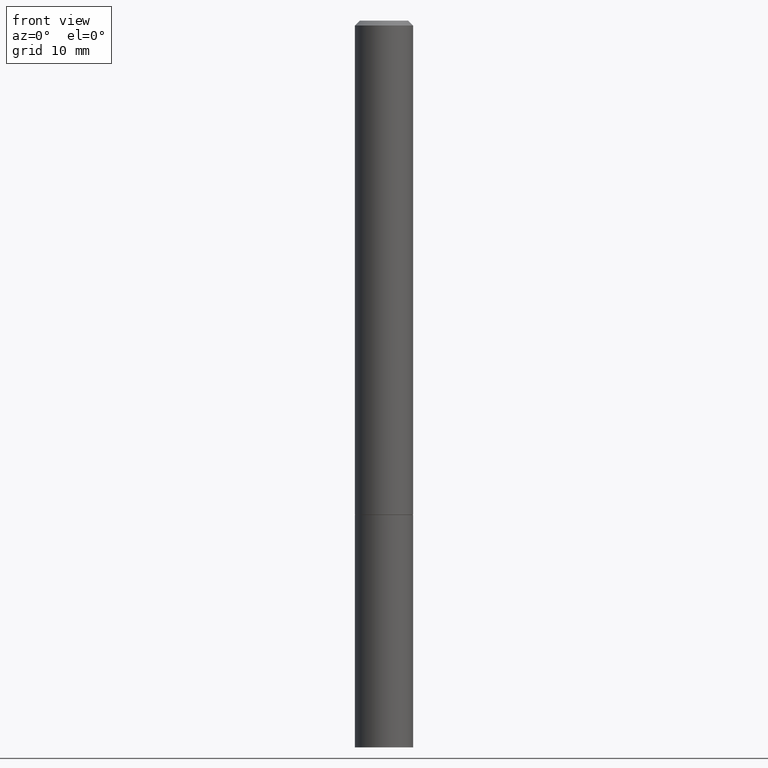
[diagram: clean part render]
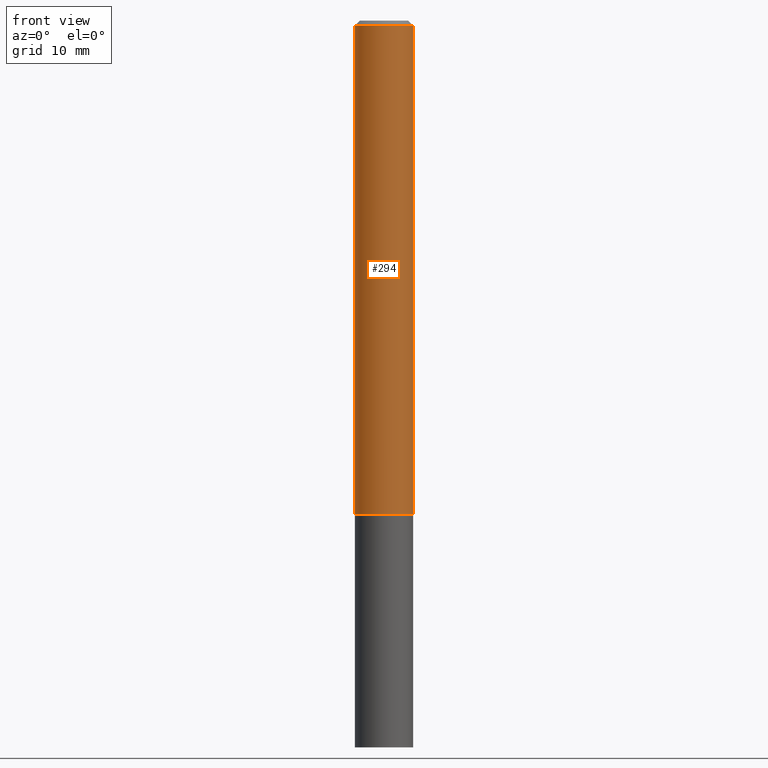
[diagram: same view with one face highlighted and labeled with its STEP entity id]
A machine part, front view. The second image highlights one B-rep face of the part: STEP entity #294.
In plain terms, the highlighted cylindrical surface (edge-blend (fillet) strip) has radius 2.9997 mm, axis along (-0, 0, 1).
Its self-contained STEP definition (entity closure, byte-faithful):
#3 = CARTESIAN_POINT ( 'NONE',  ( -0.1180999999999998995, 8.391509709326776054E-16, -5.809262341591038879E-30 ) ) ;
#13 = DIRECTION ( 'NONE',  ( 1.000000000000000000, -6.982962677686266711E-15, 0.000000000000000000 ) ) ;
#14 = EDGE_CURVE ( 'NONE', #205, #207, #17, .T. ) ;
#17 = LINE ( 'NONE', #131, #346 ) ;
#24 = FACE_OUTER_BOUND ( 'NONE', #292, .T. ) ;
#33 = ORIENTED_EDGE ( 'NONE', *, *, #141, .T. ) ;
#70 = DIRECTION ( 'NONE',  ( -2.445468806185136597E-29, 3.491481338843145583E-15, 1.000000000000000000 ) ) ;
#84 = DIRECTION ( 'NONE',  ( 1.000000000000000000, -6.982962677686266711E-15, 4.876176775795935232E-29 ) ) ;
#85 = CIRCLE ( 'NONE', #117, 0.1181000000000000105 ) ;
#108 = AXIS2_PLACEMENT_3D ( 'NONE', #293, #267, #13 ) ;
#110 = CYLINDRICAL_SURFACE ( 'NONE', #329, 0.1180999999999998995 ) ;
#112 = DIRECTION ( 'NONE',  ( -2.445468806185136877E-29, 3.491481338843145188E-15, 1.000000000000000000 ) ) ;
#117 = AXIS2_PLACEMENT_3D ( 'NONE', #331, #70, #190 ) ;
#131 = CARTESIAN_POINT ( 'NONE',  ( 0.1180999999999998995, -8.246878922347473751E-16, 5.758764772214994835E-30 ) ) ;
#137 = CARTESIAN_POINT ( 'NONE',  ( -0.1181000000000000383, -2.699290791917902676E-15, -2.006899999999999462 ) ) ;
#140 = DIRECTION ( 'NONE',  ( -2.445468806185136597E-29, 3.491481338843145583E-15, 1.000000000000000000 ) ) ;
#141 = EDGE_CURVE ( 'NONE', #235, #205, #85, .T. ) ;
#146 = CARTESIAN_POINT ( 'NONE',  ( 0.000000000000000000, 0.000000000000000000, 0.000000000000000000 ) ) ;
#152 = VECTOR ( 'NONE', #112, 39.37007874015748143 ) ;
#171 = LINE ( 'NONE', #3, #152 ) ;
#190 = DIRECTION ( 'NONE',  ( 1.000000000000000000, -6.982962677686264344E-15, 0.000000000000000000 ) ) ;
#205 = VERTEX_POINT ( 'NONE', #240 ) ;
#207 = VERTEX_POINT ( 'NONE', #226 ) ;
#221 = CIRCLE ( 'NONE', #108, 0.1180999999999997746 ) ;
#226 = CARTESIAN_POINT ( 'NONE',  ( 0.1180999999999997746, -8.800544403136792597E-16, -0.02000000000000003164 ) ) ;
#235 = VERTEX_POINT ( 'NONE', #137 ) ;
#240 = CARTESIAN_POINT ( 'NONE',  ( 0.1181000000000000105, -7.831741791159054599E-15, -2.006899999999999462 ) ) ;
#242 = ORIENTED_EDGE ( 'NONE', *, *, #351, .F. ) ;
#267 = DIRECTION ( 'NONE',  ( -2.445468806185136597E-29, 3.491481338843145583E-15, 1.000000000000000000 ) ) ;
#283 = ORIENTED_EDGE ( 'NONE', *, *, #14, .T. ) ;
#286 = ORIENTED_EDGE ( 'NONE', *, *, #337, .F. ) ;
#292 = EDGE_LOOP ( 'NONE', ( #286, #33, #283, #242 ) ) ;
#293 = CARTESIAN_POINT ( 'NONE',  ( 4.890937612370280165E-31, -6.982962677686301470E-17, -0.02000000000000003164 ) ) ;
#294 = ADVANCED_FACE ( 'NONE', ( #24 ), #110, .T. ) ;
#323 = CARTESIAN_POINT ( 'NONE',  ( -0.1180999999999997746, 7.548582654578835839E-16, -0.02000000000000003164 ) ) ;
#329 = AXIS2_PLACEMENT_3D ( 'NONE', #146, #140, #84 ) ;
#331 = CARTESIAN_POINT ( 'NONE',  ( 4.907811347132949706E-29, -7.007053898924307126E-15, -2.006899999999999462 ) ) ;
#337 = EDGE_CURVE ( 'NONE', #235, #357, #171, .T. ) ;
#346 = VECTOR ( 'NONE', #361, 39.37007874015748143 ) ;
#351 = EDGE_CURVE ( 'NONE', #357, #207, #221, .T. ) ;
#357 = VERTEX_POINT ( 'NONE', #323 ) ;
#361 = DIRECTION ( 'NONE',  ( -2.445468806185136877E-29, 3.491481338843145188E-15, 1.000000000000000000 ) ) ;